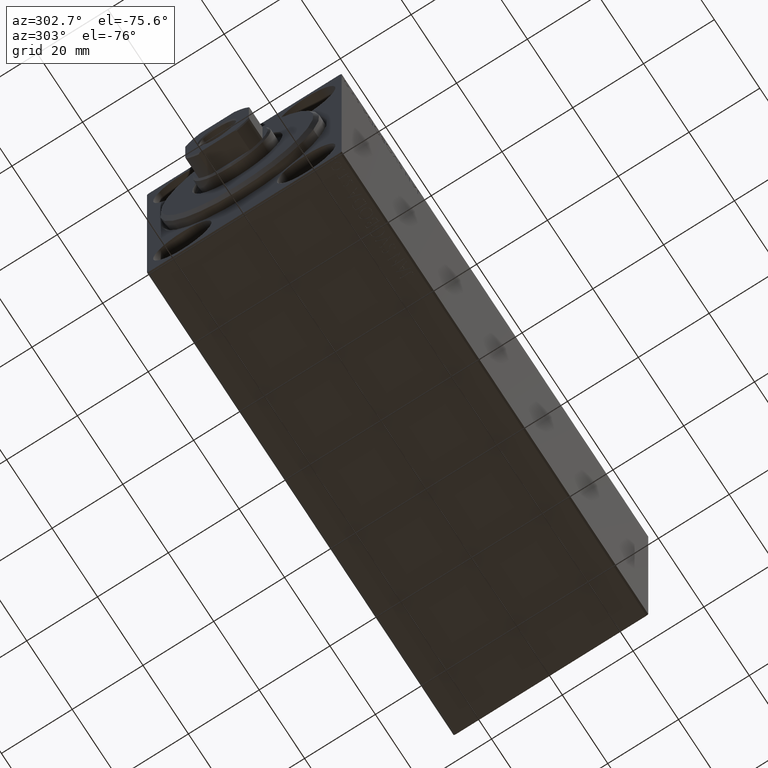
[diagram: clean part render]
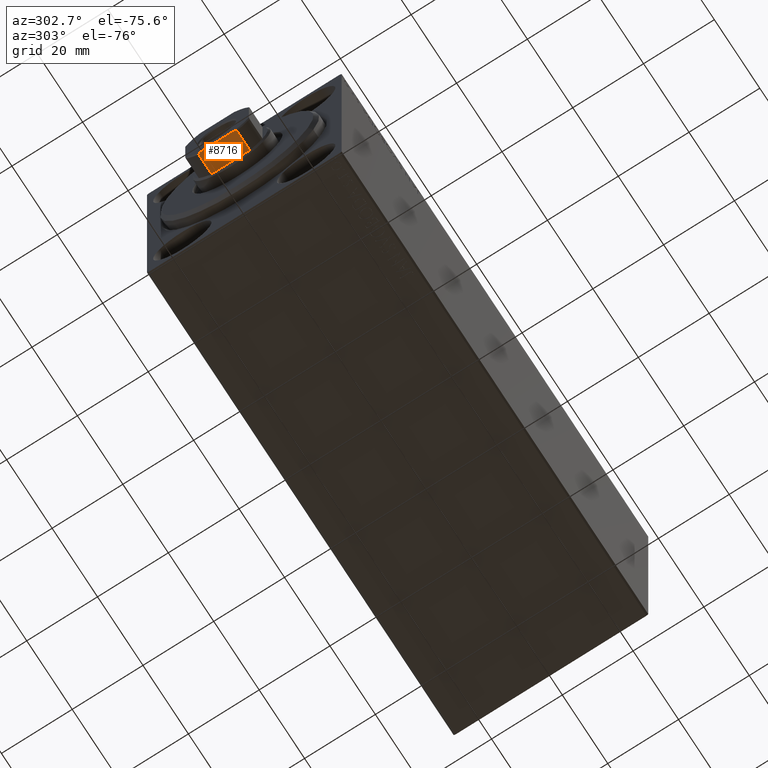
[diagram: same view with one face highlighted and labeled with its STEP entity id]
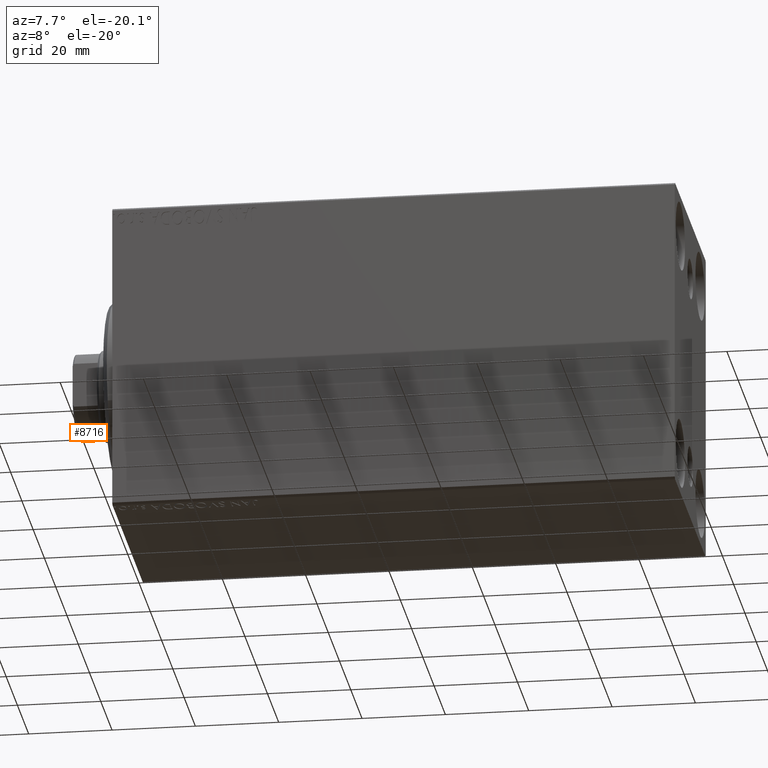
[diagram: same view with one face highlighted and labeled with its STEP entity id]
A machine part, auxiliary view. The second image highlights one B-rep face of the part: STEP entity #8716.
A second angle (auxiliary view) of the same face is appended — the face is thin or edge-on in the first view.
In plain terms, the highlighted planar face has unit normal (0, 0, 1).
Its self-contained STEP definition (entity closure, byte-faithful):
#139 = EDGE_CURVE ( 'NONE', #24393, #2688, #26658, .T. ) ;
#445 = VECTOR ( 'NONE', #41080, 1000.000000000000000 ) ;
#1131 = CARTESIAN_POINT ( 'NONE',  ( -9.000000000000000000, -5.408326913195987018, 130.9999999999999716 ) ) ;
#1161 = LINE ( 'NONE', #14807, #4458 ) ;
#1796 = ORIENTED_EDGE ( 'NONE', *, *, #14559, .T. ) ;
#2688 = VERTEX_POINT ( 'NONE', #12552 ) ;
#2860 = ORIENTED_EDGE ( 'NONE', *, *, #20541, .F. ) ;
#3577 = EDGE_LOOP ( 'NONE', ( #9657, #19659, #2860, #25495, #7924, #1796 ) ) ;
#4458 = VECTOR ( 'NONE', #41674, 1000.000000000000000 ) ;
#5679 = PLANE ( 'NONE',  #26364 ) ;
#7924 = ORIENTED_EDGE ( 'NONE', *, *, #40205, .F. ) ;
#8716 = ADVANCED_FACE ( 'NONE', ( #36048 ), #5679, .F. ) ;
#9247 = CARTESIAN_POINT ( 'NONE',  ( -9.000000000000001776, 8.999999999999998224, 137.0000000000000000 ) ) ;
#9657 = ORIENTED_EDGE ( 'NONE', *, *, #11409, .T. ) ;
#10432 = CARTESIAN_POINT ( 'NONE',  ( -9.000000000000001776, 5.207299490555462818, 136.8035449543006621 ) ) ;
#10975 = CARTESIAN_POINT ( 'NONE',  ( -9.000000000000001776, 8.999999999999998224, 131.0000000000000000 ) ) ;
#11409 = EDGE_CURVE ( 'NONE', #34458, #24393, #27638, .T. ) ;
#12552 = CARTESIAN_POINT ( 'NONE',  ( -8.999999999999998224, -4.799999999999915445, 137.0000000000000000 ) ) ;
#12920 = DIRECTION ( 'NONE',  ( 1.000000000000000000, 1.927470528863119049E-16, -0.000000000000000000 ) ) ;
#13723 = CARTESIAN_POINT ( 'NONE',  ( -9.000000000000001776, 4.799999999999957190, 137.0000000000000000 ) ) ;
#14172 = EDGE_CURVE ( 'NONE', #31953, #43505, #19939, .T. ) ;
#14559 = EDGE_CURVE ( 'NONE', #24681, #34458, #41143, .T. ) ;
#14807 = CARTESIAN_POINT ( 'NONE',  ( -8.999999999999998224, 5.408326913195988794, -0.001000000000001000089 ) ) ;
#15644 = LINE ( 'NONE', #9247, #28186 ) ;
#15927 = CARTESIAN_POINT ( 'NONE',  ( -9.000000000000000000, -5.207299490555445942, 136.8035449543006621 ) ) ;
#16515 = DIRECTION ( 'NONE',  ( 1.927470528863119049E-16, -1.000000000000000000, 0.000000000000000000 ) ) ;
#17247 = CARTESIAN_POINT ( 'NONE',  ( -8.999999999999998224, 5.408326913195988794, 136.6999999999999886 ) ) ;
#19659 = ORIENTED_EDGE ( 'NONE', *, *, #139, .T. ) ;
#19939 = B_SPLINE_CURVE_WITH_KNOTS ( 'NONE', 3,
 ( #13723, #40597, #10432, #17247 ),
 .UNSPECIFIED., .F., .F.,
 ( 4, 4 ),
 ( 0.000000000000000000, 0.0006782784334759783514 ),
 .UNSPECIFIED. ) ;
#20541 = EDGE_CURVE ( 'NONE', #31953, #2688, #15644, .T. ) ;
#24343 = CARTESIAN_POINT ( 'NONE',  ( -9.000000000000000000, -5.408326913195987018, -0.001000000000001000089 ) ) ;
#24393 = VERTEX_POINT ( 'NONE', #34534 ) ;
#24407 = DIRECTION ( 'NONE',  ( 1.927470528863119049E-16, -1.000000000000000000, 0.000000000000000000 ) ) ;
#24681 = VERTEX_POINT ( 'NONE', #43305 ) ;
#25495 = ORIENTED_EDGE ( 'NONE', *, *, #14172, .T. ) ;
#26364 = AXIS2_PLACEMENT_3D ( 'NONE', #43100, #12920, #32533 ) ;
#26658 = B_SPLINE_CURVE_WITH_KNOTS ( 'NONE', 3,
 ( #43475, #15927, #40149, #42806 ),
 .UNSPECIFIED., .F., .F.,
 ( 4, 4 ),
 ( 0.000000000000000000, 0.0006782784334760239963 ),
 .UNSPECIFIED. ) ;
#27638 = LINE ( 'NONE', #24343, #445 ) ;
#28186 = VECTOR ( 'NONE', #16515, 1000.000000000000000 ) ;
#29218 = CARTESIAN_POINT ( 'NONE',  ( -8.999999999999998224, 5.408326913195988794, 136.6999999999999886 ) ) ;
#31953 = VERTEX_POINT ( 'NONE', #32147 ) ;
#32128 = VECTOR ( 'NONE', #24407, 1000.000000000000000 ) ;
#32147 = CARTESIAN_POINT ( 'NONE',  ( -9.000000000000001776, 4.799999999999957190, 137.0000000000000000 ) ) ;
#32533 = DIRECTION ( 'NONE',  ( -1.927470528863119049E-16, 1.000000000000000000, 0.000000000000000000 ) ) ;
#34458 = VERTEX_POINT ( 'NONE', #1131 ) ;
#34534 = CARTESIAN_POINT ( 'NONE',  ( -9.000000000000000000, -5.408326913195987018, 136.6999999999999602 ) ) ;
#36048 = FACE_OUTER_BOUND ( 'NONE', #3577, .T. ) ;
#40149 = CARTESIAN_POINT ( 'NONE',  ( -8.999999999999998224, -5.004607318780252001, 136.9037142029269205 ) ) ;
#40205 = EDGE_CURVE ( 'NONE', #24681, #43505, #1161, .T. ) ;
#40597 = CARTESIAN_POINT ( 'NONE',  ( -9.000000000000001776, 5.004607318780273317, 136.9037142029269205 ) ) ;
#41080 = DIRECTION ( 'NONE',  ( -0.000000000000000000, -0.000000000000000000, 1.000000000000000000 ) ) ;
#41143 = LINE ( 'NONE', #10975, #32128 ) ;
#41674 = DIRECTION ( 'NONE',  ( -0.000000000000000000, -0.000000000000000000, 1.000000000000000000 ) ) ;
#42806 = CARTESIAN_POINT ( 'NONE',  ( -8.999999999999998224, -4.799999999999915445, 137.0000000000000000 ) ) ;
#43100 = CARTESIAN_POINT ( 'NONE',  ( -9.000000000000001776, 8.999999999999998224, 137.0000000000000000 ) ) ;
#43305 = CARTESIAN_POINT ( 'NONE',  ( -8.999999999999998224, 5.408326913195986130, 130.9999999999999716 ) ) ;
#43475 = CARTESIAN_POINT ( 'NONE',  ( -9.000000000000000000, -5.408326913195987018, 136.6999999999999602 ) ) ;
#43505 = VERTEX_POINT ( 'NONE', #29218 ) ;